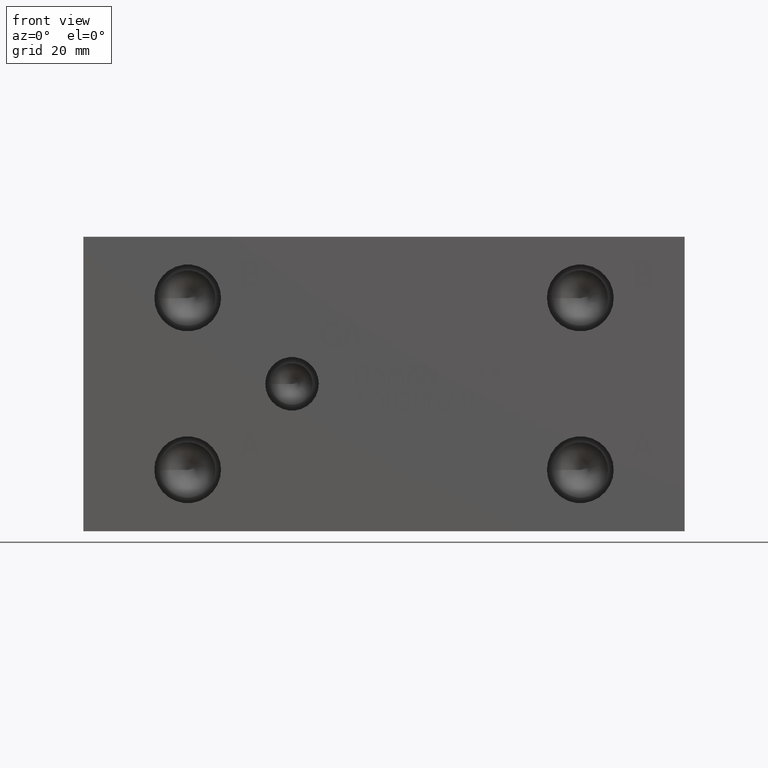
[diagram: clean part render]
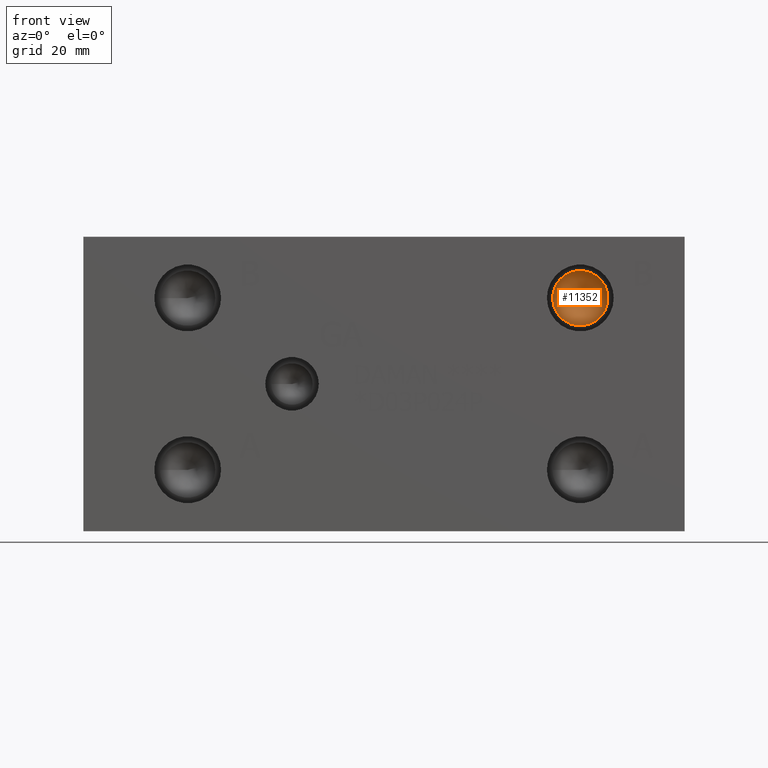
[diagram: same view with one face highlighted and labeled with its STEP entity id]
A machine part, front view. The second image highlights one B-rep face of the part: STEP entity #11352.
In plain terms, the highlighted conical surface has half-angle 60 deg.
Its self-contained STEP definition (entity closure, byte-faithful):
#77=CONICAL_SURFACE('',#11886,3.57505,1.0471975511966);
#178=CIRCLE('',#11887,7.1501);
#179=CIRCLE('',#11888,7.1501);
#1255=FACE_OUTER_BOUND('',#1908,.T.);
#1908=EDGE_LOOP('',(#9886,#9887,#9888,#9889));
#3038=LINE('',#19154,#4126);
#4126=VECTOR('',#14008,3.57505);
#5420=VERTEX_POINT('',#19150);
#5421=VERTEX_POINT('',#19151);
#5422=VERTEX_POINT('',#19153);
#6951=EDGE_CURVE('',#5420,#5421,#178,.T.);
#6952=EDGE_CURVE('',#5421,#5422,#3038,.T.);
#6953=EDGE_CURVE('',#5421,#5420,#179,.T.);
#9886=ORIENTED_EDGE('',*,*,#6951,.T.);
#9887=ORIENTED_EDGE('',*,*,#6952,.T.);
#9888=ORIENTED_EDGE('',*,*,#6952,.F.);
#9889=ORIENTED_EDGE('',*,*,#6953,.T.);
#11352=ADVANCED_FACE('',(#1255),#77,.F.);
#11886=AXIS2_PLACEMENT_3D('',#19149,#14004,#14005);
#11887=AXIS2_PLACEMENT_3D('',#19152,#14006,#14007);
#11888=AXIS2_PLACEMENT_3D('',#19155,#14009,#14010);
#14004=DIRECTION('center_axis',(0.,-1.,0.));
#14005=DIRECTION('ref_axis',(1.,0.,0.));
#14006=DIRECTION('center_axis',(0.,-1.,0.));
#14007=DIRECTION('ref_axis',(1.,0.,0.));
#14008=DIRECTION('',(0.866025403784439,0.5,1.06057523872491E-16));
#14009=DIRECTION('center_axis',(0.,-1.,0.));
#14010=DIRECTION('ref_axis',(1.,0.,0.));
#19149=CARTESIAN_POINT('Origin',(128.5748,14.2116660798664,60.325));
#19150=CARTESIAN_POINT('',(135.7249,12.14761,60.325));
#19151=CARTESIAN_POINT('',(121.4247,12.14761,60.325));
#19152=CARTESIAN_POINT('Origin',(128.5748,12.14761,60.325));
#19153=CARTESIAN_POINT('',(128.5748,16.2757221597327,60.325));
#19154=CARTESIAN_POINT('',(124.99975,14.2116660798664,60.325));
#19155=CARTESIAN_POINT('Origin',(128.5748,12.14761,60.325));